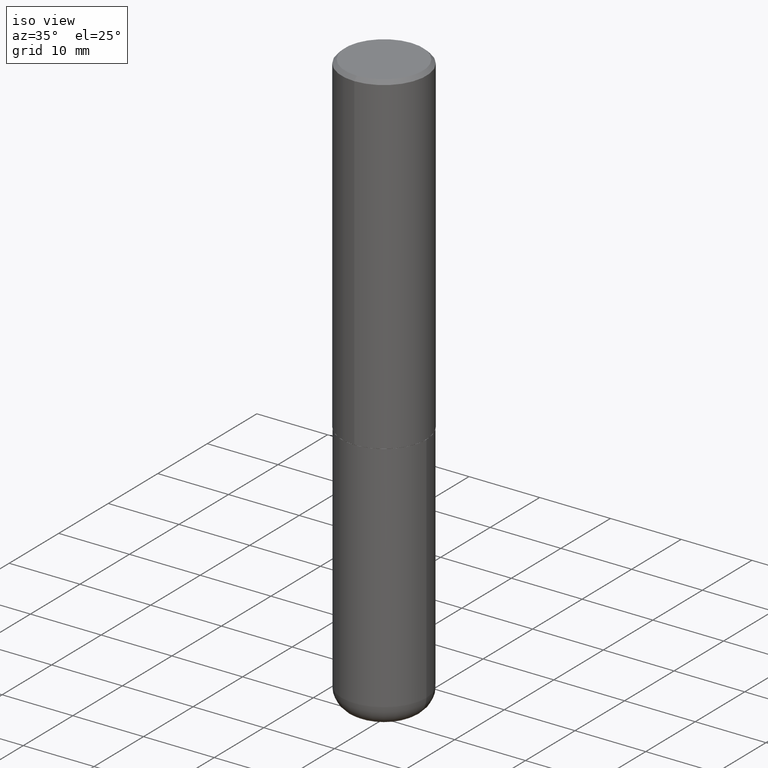
[diagram: clean part render]
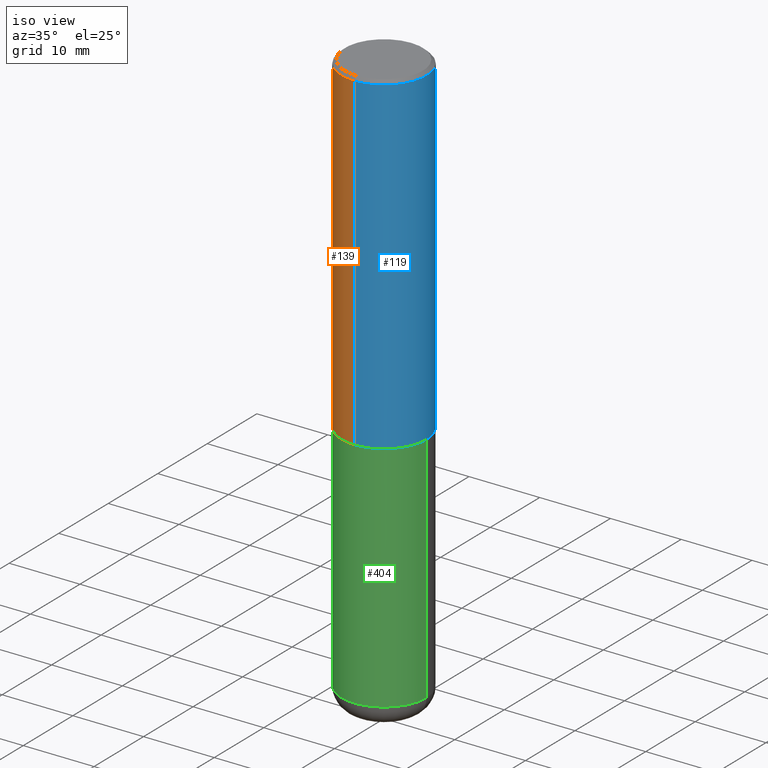
[diagram: same view with three faces highlighted in distinct colors, each labeled with its STEP entity id]
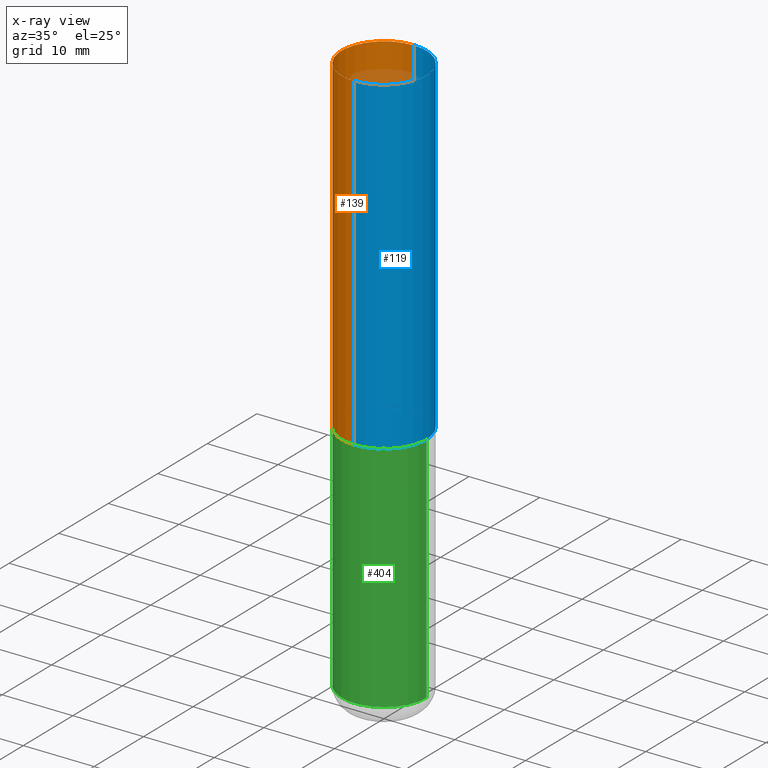
[diagram: x-ray of the same camera — body ghosted, the three highlighted faces saturated]
A machine part, iso view with three faces highlighted in distinct colors.
The next image is the same camera in x-ray (body ghosted, the three faces saturated) — at least one of them is partly hidden behind the body in this view.
Their STEP definitions:

[orange] entity #139 — the highlighted cylindrical surface (partial cylindrical patch) has radius 5.9995 mm, axis along (-0, 0, 1).
#5 = DIRECTION ( 'NONE',  ( -2.445371925614294233E-29, 3.491620077334691546E-15, 1.000000000000000000 ) ) ;
#8 = EDGE_CURVE ( 'NONE', #283, #343, #222, .T. ) ;
#42 = FACE_OUTER_BOUND ( 'NONE', #351, .T. ) ;
#52 = VERTEX_POINT ( 'NONE', #280 ) ;
#60 = ORIENTED_EDGE ( 'NONE', *, *, #195, .F. ) ;
#64 = EDGE_CURVE ( 'NONE', #283, #52, #302, .T. ) ;
#73 = CYLINDRICAL_SURFACE ( 'NONE', #348, 0.2362000000000001043 ) ;
#82 = AXIS2_PLACEMENT_3D ( 'NONE', #367, #209, #333 ) ;
#84 = EDGE_CURVE ( 'NONE', #343, #344, #215, .T. ) ;
#87 = DIRECTION ( 'NONE',  ( -2.445371925614294233E-29, 3.491620077334691546E-15, 1.000000000000000000 ) ) ;
#93 = CARTESIAN_POINT ( 'NONE',  ( -1.649375784469452349E-15, -0.2362000000000066546, -1.849399999999999489 ) ) ;
#139 = ADVANCED_FACE ( 'NONE', ( #42 ), #73, .T. ) ;
#146 = CARTESIAN_POINT ( 'NONE',  ( 4.522470839231075964E-29, -6.457402171022779437E-15, -1.849400000000000155 ) ) ;
#163 = CIRCLE ( 'NONE', #82, 0.2361999999999999933 ) ;
#189 = CARTESIAN_POINT ( 'NONE',  ( 0.000000000000000000, 0.000000000000000000, 0.000000000000000000 ) ) ;
#195 = EDGE_CURVE ( 'NONE', #52, #344, #163, .T. ) ;
#209 = DIRECTION ( 'NONE',  ( -2.445371925614294233E-29, 3.491620077334691546E-15, 1.000000000000000000 ) ) ;
#215 = LINE ( 'NONE', #216, #366 ) ;
#216 = CARTESIAN_POINT ( 'NONE',  ( -1.649375784469496722E-15, -0.2362000000000001043, 8.247206622664545710E-16 ) ) ;
#222 = CIRCLE ( 'NONE', #241, 0.2362000000000002153 ) ;
#226 = ORIENTED_EDGE ( 'NONE', *, *, #84, .T. ) ;
#241 = AXIS2_PLACEMENT_3D ( 'NONE', #146, #272, #403 ) ;
#272 = DIRECTION ( 'NONE',  ( -2.445371925614294233E-29, 3.491620077334691546E-15, 1.000000000000000000 ) ) ;
#277 = ORIENTED_EDGE ( 'NONE', *, *, #8, .T. ) ;
#280 = CARTESIAN_POINT ( 'NONE',  ( 1.649375784469496525E-15, 0.2361999999999999378, -0.02000000000000087472 ) ) ;
#283 = VERTEX_POINT ( 'NONE', #362 ) ;
#302 = LINE ( 'NONE', #374, #370 ) ;
#321 = CARTESIAN_POINT ( 'NONE',  ( -1.620449627073635079E-15, -0.2362000000000000766, -0.01999999999999922673 ) ) ;
#333 = DIRECTION ( 'NONE',  ( -6.982962677686265922E-15, -1.000000000000000000, 3.487819265831411744E-15 ) ) ;
#340 = DIRECTION ( 'NONE',  ( -2.445371925614294233E-29, 3.491620077334691546E-15, 1.000000000000000000 ) ) ;
#343 = VERTEX_POINT ( 'NONE', #93 ) ;
#344 = VERTEX_POINT ( 'NONE', #321 ) ;
#346 = ORIENTED_EDGE ( 'NONE', *, *, #64, .F. ) ;
#348 = AXIS2_PLACEMENT_3D ( 'NONE', #189, #5, #418 ) ;
#351 = EDGE_LOOP ( 'NONE', ( #346, #277, #226, #60 ) ) ;
#362 = CARTESIAN_POINT ( 'NONE',  ( 1.678301941865380454E-15, 0.2361999999999937760, -1.849400000000001043 ) ) ;
#366 = VECTOR ( 'NONE', #340, 39.37007874015748143 ) ;
#367 = CARTESIAN_POINT ( 'NONE',  ( 4.890743851228601113E-31, -6.983240154669400497E-17, -0.02000000000000005246 ) ) ;
#370 = VECTOR ( 'NONE', #87, 39.37007874015748143 ) ;
#374 = CARTESIAN_POINT ( 'NONE',  ( 1.678301941865357183E-15, 0.2362000000000001043, -8.247206622664545710E-16 ) ) ;
#403 = DIRECTION ( 'NONE',  ( -6.982962677686265133E-15, -1.000000000000000000, 3.469747663417773847E-15 ) ) ;
#418 = DIRECTION ( 'NONE',  ( -6.982962677686265922E-15, -1.000000000000000000, 3.491620077334691941E-15 ) ) ;

[blue] entity #119 — the highlighted cylindrical surface (partial cylindrical patch) has radius 5.9995 mm, axis along (-0, 0, 1).
#12 = ORIENTED_EDGE ( 'NONE', *, *, #245, .T. ) ;
#20 = AXIS2_PLACEMENT_3D ( 'NONE', #151, #172, #396 ) ;
#28 = CIRCLE ( 'NONE', #20, 0.2361999999999999933 ) ;
#29 = ORIENTED_EDGE ( 'NONE', *, *, #64, .T. ) ;
#33 = FACE_OUTER_BOUND ( 'NONE', #317, .T. ) ;
#34 = ORIENTED_EDGE ( 'NONE', *, *, #84, .F. ) ;
#52 = VERTEX_POINT ( 'NONE', #280 ) ;
#64 = EDGE_CURVE ( 'NONE', #283, #52, #302, .T. ) ;
#84 = EDGE_CURVE ( 'NONE', #343, #344, #215, .T. ) ;
#87 = DIRECTION ( 'NONE',  ( -2.445371925614294233E-29, 3.491620077334691546E-15, 1.000000000000000000 ) ) ;
#93 = CARTESIAN_POINT ( 'NONE',  ( -1.649375784469452349E-15, -0.2362000000000066546, -1.849399999999999489 ) ) ;
#99 = DIRECTION ( 'NONE',  ( -6.982962677686265922E-15, -1.000000000000000000, 3.491620077334691941E-15 ) ) ;
#117 = DIRECTION ( 'NONE',  ( -6.982962677686265133E-15, -1.000000000000000000, 3.469747663417773847E-15 ) ) ;
#119 = ADVANCED_FACE ( 'NONE', ( #33 ), #375, .T. ) ;
#124 = CARTESIAN_POINT ( 'NONE',  ( 4.522470839231075964E-29, -6.457402171022779437E-15, -1.849400000000000155 ) ) ;
#151 = CARTESIAN_POINT ( 'NONE',  ( 4.890743851228601113E-31, -6.983240154669400497E-17, -0.02000000000000005246 ) ) ;
#154 = AXIS2_PLACEMENT_3D ( 'NONE', #124, #415, #117 ) ;
#160 = EDGE_CURVE ( 'NONE', #344, #52, #28, .T. ) ;
#172 = DIRECTION ( 'NONE',  ( -2.445371925614294233E-29, 3.491620077334691546E-15, 1.000000000000000000 ) ) ;
#184 = ORIENTED_EDGE ( 'NONE', *, *, #160, .F. ) ;
#206 = CIRCLE ( 'NONE', #154, 0.2362000000000002153 ) ;
#215 = LINE ( 'NONE', #216, #366 ) ;
#216 = CARTESIAN_POINT ( 'NONE',  ( -1.649375784469496722E-15, -0.2362000000000001043, 8.247206622664545710E-16 ) ) ;
#245 = EDGE_CURVE ( 'NONE', #343, #283, #206, .T. ) ;
#280 = CARTESIAN_POINT ( 'NONE',  ( 1.649375784469496525E-15, 0.2361999999999999378, -0.02000000000000087472 ) ) ;
#283 = VERTEX_POINT ( 'NONE', #362 ) ;
#289 = AXIS2_PLACEMENT_3D ( 'NONE', #309, #356, #99 ) ;
#302 = LINE ( 'NONE', #374, #370 ) ;
#309 = CARTESIAN_POINT ( 'NONE',  ( 0.000000000000000000, 0.000000000000000000, 0.000000000000000000 ) ) ;
#317 = EDGE_LOOP ( 'NONE', ( #12, #29, #184, #34 ) ) ;
#321 = CARTESIAN_POINT ( 'NONE',  ( -1.620449627073635079E-15, -0.2362000000000000766, -0.01999999999999922673 ) ) ;
#340 = DIRECTION ( 'NONE',  ( -2.445371925614294233E-29, 3.491620077334691546E-15, 1.000000000000000000 ) ) ;
#343 = VERTEX_POINT ( 'NONE', #93 ) ;
#344 = VERTEX_POINT ( 'NONE', #321 ) ;
#356 = DIRECTION ( 'NONE',  ( -2.445371925614294233E-29, 3.491620077334691546E-15, 1.000000000000000000 ) ) ;
#362 = CARTESIAN_POINT ( 'NONE',  ( 1.678301941865380454E-15, 0.2361999999999937760, -1.849400000000001043 ) ) ;
#366 = VECTOR ( 'NONE', #340, 39.37007874015748143 ) ;
#370 = VECTOR ( 'NONE', #87, 39.37007874015748143 ) ;
#374 = CARTESIAN_POINT ( 'NONE',  ( 1.678301941865357183E-15, 0.2362000000000001043, -8.247206622664545710E-16 ) ) ;
#375 = CYLINDRICAL_SURFACE ( 'NONE', #289, 0.2362000000000001043 ) ;
#396 = DIRECTION ( 'NONE',  ( -6.982962677686265922E-15, -1.000000000000000000, 3.487819265831411744E-15 ) ) ;
#415 = DIRECTION ( 'NONE',  ( -2.445371925614294233E-29, 3.491620077334691546E-15, 1.000000000000000000 ) ) ;

[green] entity #404 — the highlighted cylindrical surface (partial cylindrical patch) has radius 5.9995 mm, axis along (-0, 0, 1).
#19 = VECTOR ( 'NONE', #371, 39.37007874015748143 ) ;
#26 = EDGE_CURVE ( 'NONE', #278, #342, #32, .T. ) ;
#32 = LINE ( 'NONE', #414, #19 ) ;
#37 = CIRCLE ( 'NONE', #243, 0.2361999999999999933 ) ;
#43 = EDGE_LOOP ( 'NONE', ( #406, #63, #183, #379 ) ) ;
#45 = CYLINDRICAL_SURFACE ( 'NONE', #281, 0.2361999999999999933 ) ;
#56 = CARTESIAN_POINT ( 'NONE',  ( -0.2361999999999999933, -7.050401405242508548E-15, -1.850400000000000267 ) ) ;
#63 = ORIENTED_EDGE ( 'NONE', *, *, #337, .T. ) ;
#65 = CARTESIAN_POINT ( 'NONE',  ( 0.2361999999999998823, -1.264614540928986883E-14, -3.149600000000000399 ) ) ;
#70 = FACE_OUTER_BOUND ( 'NONE', #43, .T. ) ;
#89 = DIRECTION ( 'NONE',  ( -2.445468806185136877E-29, 3.491481338843145188E-15, 1.000000000000000000 ) ) ;
#123 = CARTESIAN_POINT ( 'NONE',  ( 0.2361999999999999933, -8.110012853864854101E-15, -1.850400000000000267 ) ) ;
#135 = CARTESIAN_POINT ( 'NONE',  ( 4.525095478964977394E-29, -6.460637069395357576E-15, -1.850400000000000267 ) ) ;
#153 = VERTEX_POINT ( 'NONE', #398 ) ;
#166 = CIRCLE ( 'NONE', #322, 0.2362000000000000210 ) ;
#170 = DIRECTION ( 'NONE',  ( 1.000000000000000000, -6.982962677686266711E-15, 4.876176775795936353E-29 ) ) ;
#183 = ORIENTED_EDGE ( 'NONE', *, *, #26, .T. ) ;
#203 = CARTESIAN_POINT ( 'NONE',  ( 0.000000000000000000, 0.000000000000000000, 0.000000000000000000 ) ) ;
#229 = DIRECTION ( 'NONE',  ( -2.445468806185136597E-29, 3.491481338843145583E-15, 1.000000000000000000 ) ) ;
#235 = VERTEX_POINT ( 'NONE', #56 ) ;
#243 = AXIS2_PLACEMENT_3D ( 'NONE', #135, #352, #266 ) ;
#247 = LINE ( 'NONE', #313, #296 ) ;
#256 = EDGE_CURVE ( 'NONE', #153, #235, #247, .T. ) ;
#262 = DIRECTION ( 'NONE',  ( -2.445468806185136597E-29, 3.491481338843145583E-15, 1.000000000000000000 ) ) ;
#266 = DIRECTION ( 'NONE',  ( 1.000000000000000000, -6.982962677686269077E-15, 0.000000000000000000 ) ) ;
#278 = VERTEX_POINT ( 'NONE', #65 ) ;
#281 = AXIS2_PLACEMENT_3D ( 'NONE', #203, #229, #170 ) ;
#285 = DIRECTION ( 'NONE',  ( 1.000000000000000000, -6.982962677686264344E-15, 0.000000000000000000 ) ) ;
#296 = VECTOR ( 'NONE', #89, 39.37007874015748143 ) ;
#313 = CARTESIAN_POINT ( 'NONE',  ( -0.2361999999999999933, 1.678301941865356591E-15, -1.161852468318208757E-29 ) ) ;
#322 = AXIS2_PLACEMENT_3D ( 'NONE', #359, #262, #285 ) ;
#337 = EDGE_CURVE ( 'NONE', #153, #278, #166, .T. ) ;
#342 = VERTEX_POINT ( 'NONE', #123 ) ;
#352 = DIRECTION ( 'NONE',  ( -2.445468806185136597E-29, 3.491481338843145583E-15, 1.000000000000000000 ) ) ;
#359 = CARTESIAN_POINT ( 'NONE',  ( 7.702248551960706711E-29, -1.099676962482037231E-14, -3.149600000000000399 ) ) ;
#371 = DIRECTION ( 'NONE',  ( -2.445468806185136877E-29, 3.491481338843145188E-15, 1.000000000000000000 ) ) ;
#379 = ORIENTED_EDGE ( 'NONE', *, *, #388, .F. ) ;
#388 = EDGE_CURVE ( 'NONE', #235, #342, #37, .T. ) ;
#398 = CARTESIAN_POINT ( 'NONE',  ( -0.2361999999999998823, -9.318467682955017493E-15, -3.149600000000000399 ) ) ;
#404 = ADVANCED_FACE ( 'NONE', ( #70 ), #45, .T. ) ;
#406 = ORIENTED_EDGE ( 'NONE', *, *, #256, .F. ) ;
#414 = CARTESIAN_POINT ( 'NONE',  ( 0.2361999999999999933, -1.649375784469496131E-15, 1.151752954443000088E-29 ) ) ;